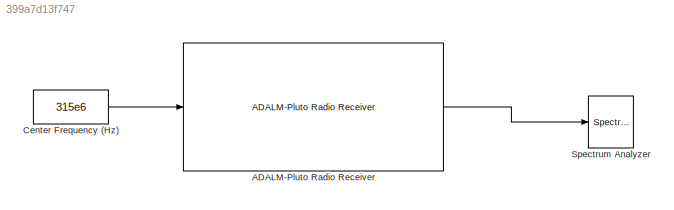
MODEL slx_399a7d13f747
KIND model
CONFIG AbsTol = auto
CONFIG EnableMultiTasking = off
CONFIG FixedStep = auto
CONFIG MaxStep = auto
CONFIG MinStep = auto
CONFIG RelTol = 1e-3
CONFIG SampleTimeConstraint = Unconstrained
CONFIG SolverName = VariableStepAuto
CONFIG StartTime = 0.0
CONFIG StopTime = inf
BLOCK [Reference] ADALM-Pluto Radio Receiver  REF=plutoradiolib/ADALM-Pluto Radio
Receiver
  Ports = [1, 1]
  SourceBlock = plutoradiolib/ADALM-Pluto Radio\nReceiver
  SourceProductBaseCode = PLUTO
  SourceType = comm.SDRRxPluto
BLOCK [Constant] Center Frequency (Hz)
  Value = 315e6
  VectorParams1D = off
BLOCK [SpectrumAnalyzer] Spectrum Analyzer
  Ports = [1]
  ScopeSpecificationString = spbscopes.SpectrumAnalyzerBlockCfg('CurrentConfiguration', extmgr.ConfigurationSet(extmgr.Configuration('Core','General UI',true),extmgr.Configuration('Core','Source UI',true),extmgr.Configuration('Sources','WiredSimulink',true),extmgr.Configuration('Visuals','Spectrum',true,'AxesProperties',struct('Color',{[0 0 0],[0 0 0]},'XColor',{[0.686274509803922 0.686274509803922 0.686274509803922],[0.68627...<+2804ch>
LINE ADALM-Pluto Radio Receiver:1 -> Spectrum Analyzer:1
LINE Center Frequency (Hz):1 -> ADALM-Pluto Radio Receiver:1
